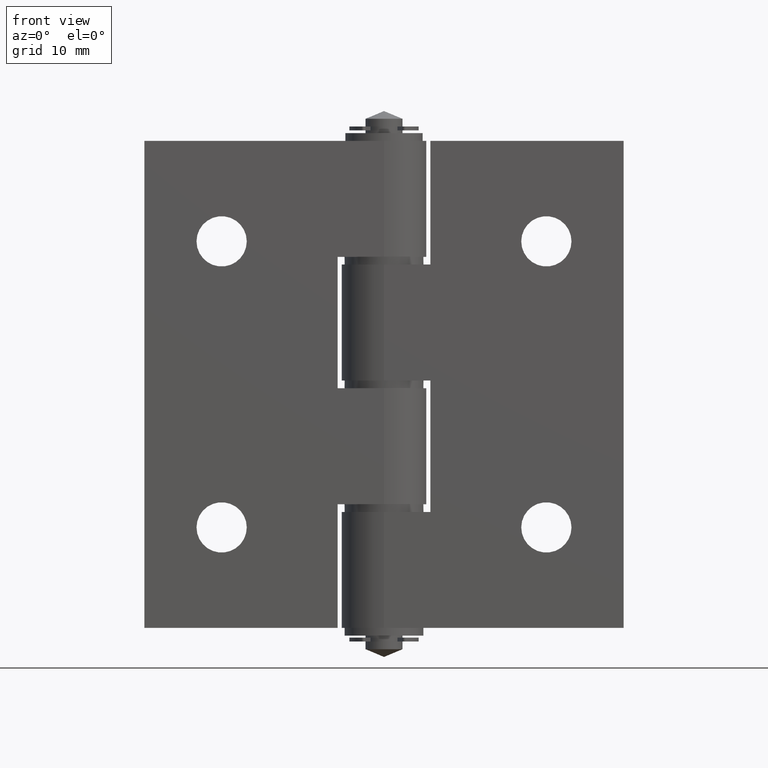
[diagram: clean part render]
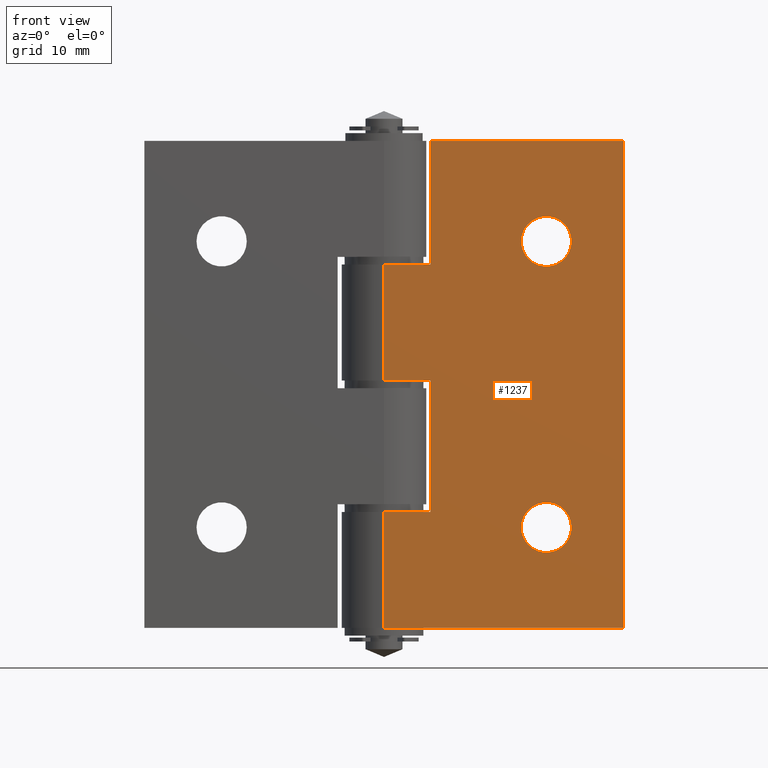
[diagram: same view with one face highlighted and labeled with its STEP entity id]
A machine part, front view. The second image highlights one B-rep face of the part: STEP entity #1237.
In plain terms, the highlighted planar face has unit normal (0, -1, 0).
Its self-contained STEP definition (entity closure, byte-faithful):
#105=FACE_BOUND('',#330,.T.);
#106=FACE_BOUND('',#331,.T.);
#157=PLANE('',#1379);
#224=FACE_OUTER_BOUND('',#329,.T.);
#329=EDGE_LOOP('',(#1088,#1089,#1090,#1091,#1092,#1093,#1094,#1095,#1096,
#1097));
#330=EDGE_LOOP('',(#1098));
#331=EDGE_LOOP('',(#1099));
#418=LINE('',#2047,#498);
#422=LINE('',#2054,#502);
#425=LINE('',#2076,#505);
#427=LINE('',#2082,#507);
#430=LINE('',#2092,#510);
#432=LINE('',#2103,#512);
#435=LINE('',#2109,#515);
#437=LINE('',#2115,#517);
#438=LINE('',#2117,#518);
#439=LINE('',#2118,#519);
#498=VECTOR('',#1667,63.);
#502=VECTOR('',#1673,25.);
#505=VECTOR('',#1698,16.);
#507=VECTOR('',#1704,6.00000000000001);
#510=VECTOR('',#1711,6.);
#512=VECTOR('',#1721,6.);
#515=VECTOR('',#1728,17.);
#517=VECTOR('',#1734,15.);
#518=VECTOR('',#1737,15.);
#519=VECTOR('',#1738,31.);
#568=CIRCLE('',#1360,3.25);
#571=CIRCLE('',#1365,3.25);
#664=VERTEX_POINT('',#2044);
#665=VERTEX_POINT('',#2046);
#667=VERTEX_POINT('',#2052);
#670=VERTEX_POINT('',#2061);
#673=VERTEX_POINT('',#2069);
#675=VERTEX_POINT('',#2074);
#677=VERTEX_POINT('',#2080);
#681=VERTEX_POINT('',#2089);
#682=VERTEX_POINT('',#2091);
#686=VERTEX_POINT('',#2100);
#687=VERTEX_POINT('',#2102);
#690=VERTEX_POINT('',#2113);
#802=EDGE_CURVE('',#664,#665,#418,.T.);
#806=EDGE_CURVE('',#667,#664,#422,.T.);
#809=EDGE_CURVE('',#670,#670,#568,.T.);
#812=EDGE_CURVE('',#673,#673,#571,.T.);
#815=EDGE_CURVE('',#667,#675,#425,.T.);
#818=EDGE_CURVE('',#675,#677,#427,.T.);
#822=EDGE_CURVE('',#682,#681,#430,.T.);
#827=EDGE_CURVE('',#687,#686,#432,.T.);
#831=EDGE_CURVE('',#681,#687,#435,.T.);
#834=EDGE_CURVE('',#690,#686,#437,.T.);
#835=EDGE_CURVE('',#682,#677,#438,.T.);
#836=EDGE_CURVE('',#665,#690,#439,.T.);
#1088=ORIENTED_EDGE('',*,*,#815,.T.);
#1089=ORIENTED_EDGE('',*,*,#818,.T.);
#1090=ORIENTED_EDGE('',*,*,#835,.F.);
#1091=ORIENTED_EDGE('',*,*,#822,.T.);
#1092=ORIENTED_EDGE('',*,*,#831,.T.);
#1093=ORIENTED_EDGE('',*,*,#827,.T.);
#1094=ORIENTED_EDGE('',*,*,#834,.F.);
#1095=ORIENTED_EDGE('',*,*,#836,.F.);
#1096=ORIENTED_EDGE('',*,*,#802,.F.);
#1097=ORIENTED_EDGE('',*,*,#806,.F.);
#1098=ORIENTED_EDGE('',*,*,#809,.T.);
#1099=ORIENTED_EDGE('',*,*,#812,.T.);
#1237=ADVANCED_FACE('',(#224,#105,#106),#157,.T.);
#1360=AXIS2_PLACEMENT_3D('',#2062,#1682,#1683);
#1365=AXIS2_PLACEMENT_3D('',#2070,#1692,#1693);
#1379=AXIS2_PLACEMENT_3D('',#2116,#1735,#1736);
#1667=DIRECTION('',(0.,0.,-1.));
#1673=DIRECTION('',(1.,0.,0.));
#1682=DIRECTION('center_axis',(0.,1.,0.));
#1683=DIRECTION('ref_axis',(1.,1.07440937866951E-16,0.));
#1692=DIRECTION('center_axis',(0.,1.,0.));
#1693=DIRECTION('ref_axis',(1.,1.07440937866951E-16,0.));
#1698=DIRECTION('',(-3.46944695195361E-16,0.,-1.));
#1704=DIRECTION('',(-1.,0.,1.28412179565475E-16));
#1711=DIRECTION('',(1.,0.,0.));
#1721=DIRECTION('',(-1.,0.,0.));
#1728=DIRECTION('',(-3.26536183713281E-16,0.,-1.));
#1734=DIRECTION('',(0.,0.,1.));
#1735=DIRECTION('center_axis',(0.,-1.,0.));
#1736=DIRECTION('ref_axis',(-1.,0.,0.));
#1737=DIRECTION('',(0.,0.,1.));
#1738=DIRECTION('',(-1.,0.,0.));
#2044=CARTESIAN_POINT('',(31.,0.,0.));
#2046=CARTESIAN_POINT('',(31.,0.,-63.));
#2047=CARTESIAN_POINT('',(31.,0.,0.));
#2052=CARTESIAN_POINT('',(6.00000000000001,0.,-4.33805059119899E-15));
#2054=CARTESIAN_POINT('',(0.,0.,0.));
#2061=CARTESIAN_POINT('',(17.75,-3.49183048067589E-16,-50.));
#2062=CARTESIAN_POINT('Origin',(21.,0.,-50.));
#2069=CARTESIAN_POINT('',(17.75,-3.49183048067589E-16,-13.));
#2070=CARTESIAN_POINT('Origin',(21.,0.,-13.));
#2074=CARTESIAN_POINT('',(6.00000000000001,0.,-16.));
#2076=CARTESIAN_POINT('',(6.00000000000001,0.,2.16778339434252E-15));
#2080=CARTESIAN_POINT('',(0.,0.,-16.));
#2082=CARTESIAN_POINT('',(18.5,0.,-16.));
#2089=CARTESIAN_POINT('',(6.,0.,-31.));
#2091=CARTESIAN_POINT('',(0.,0.,-31.));
#2092=CARTESIAN_POINT('',(9.85422334250563,0.,-31.));
#2100=CARTESIAN_POINT('',(0.,0.,-48.));
#2102=CARTESIAN_POINT('',(6.,0.,-48.));
#2103=CARTESIAN_POINT('',(18.5,0.,-48.));
#2109=CARTESIAN_POINT('',(6.00000000000001,0.,-15.5));
#2113=CARTESIAN_POINT('',(0.,0.,-63.));
#2115=CARTESIAN_POINT('',(0.,0.,0.));
#2116=CARTESIAN_POINT('Origin',(31.,0.,0.));
#2117=CARTESIAN_POINT('',(0.,0.,0.));
#2118=CARTESIAN_POINT('',(0.,0.,-63.));